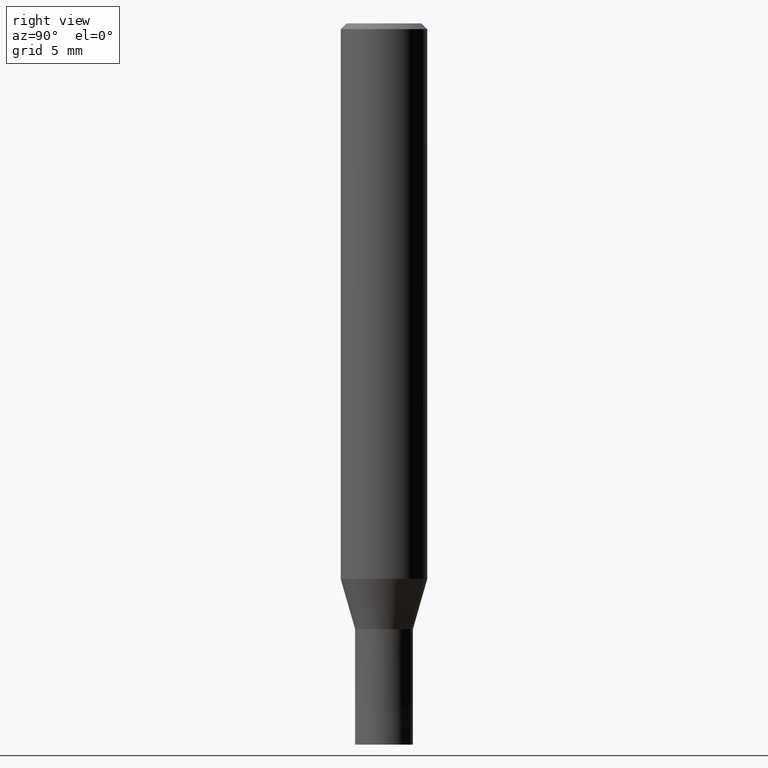
[diagram: clean part render]
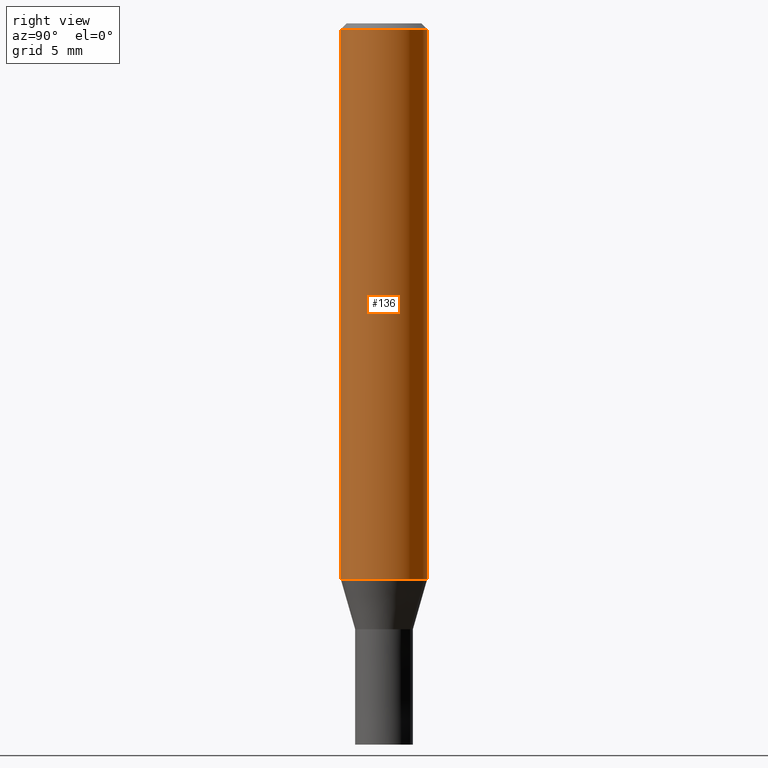
[diagram: same view with one face highlighted and labeled with its STEP entity id]
A machine part, right view. The second image highlights one B-rep face of the part: STEP entity #136.
In plain terms, the highlighted cylindrical surface (partial cylindrical patch) has radius 3 mm, axis along (-0, -0, 1).
Its self-contained STEP definition (entity closure, byte-faithful):
#90=VERTEX_POINT('',#212);
#106=VERTEX_POINT('',#229);
#126=VERTEX_POINT('',#254);
#132=EDGE_CURVE('',#162,#106,#260,.T.);
#136=ADVANCED_FACE('',(#264),#265,.T.);
#150=EDGE_CURVE('',#126,#90,#280,.T.);
#152=EDGE_CURVE('',#126,#106,#282,.T.);
#162=VERTEX_POINT('',#294);
#164=EDGE_CURVE('',#90,#162,#296,.T.);
#212=CARTESIAN_POINT('',(0.0,3.0,-38.513));
#229=CARTESIAN_POINT('',(3.67381906146713E-016,-3.0,-0.399999999999999));
#254=CARTESIAN_POINT('',(0.0,3.0,-0.399999999999999));
#260=LINE('',#397,#398);
#264=FACE_OUTER_BOUND('',#404,.T.);
#265=CYLINDRICAL_SURFACE('',#405,3.0);
#280=LINE('',#426,#427);
#282=CIRCLE('',#430,3.0);
#294=CARTESIAN_POINT('',(3.67381906146713E-016,-3.0,-38.513));
#296=CIRCLE('',#446,3.0);
#397=CARTESIAN_POINT('',(3.67381906146713E-016,-3.0,-19.4565));
#398=VECTOR('',#547,1.0);
#404=EDGE_LOOP('',(#550,#551,#552,#553));
#405=AXIS2_PLACEMENT_3D('',#554,#555,#556);
#426=CARTESIAN_POINT('',(-3.67381906146713E-016,3.0,-19.4565));
#427=VECTOR('',#570,1.0);
#430=AXIS2_PLACEMENT_3D('',#571,#572,#573);
#446=AXIS2_PLACEMENT_3D('',#589,#590,#591);
#547=DIRECTION('',(-0.0,-0.0,1.0));
#550=ORIENTED_EDGE('',*,*,#150,.F.);
#551=ORIENTED_EDGE('',*,*,#152,.T.);
#552=ORIENTED_EDGE('',*,*,#132,.F.);
#553=ORIENTED_EDGE('',*,*,#164,.F.);
#554=CARTESIAN_POINT('',(0.0,0.0,-19.4565));
#555=DIRECTION('',(-0.0,-0.0,1.0));
#556=DIRECTION('',(0.0,1.0,0.0));
#570=DIRECTION('',(0.0,0.0,-1.0));
#571=CARTESIAN_POINT('',(0.0,0.0,-0.399999999999999));
#572=DIRECTION('',(0.0,0.0,-1.0));
#573=DIRECTION('',(0.0,1.0,0.0));
#589=CARTESIAN_POINT('',(0.0,0.0,-38.513));
#590=DIRECTION('',(0.0,0.0,-1.0));
#591=DIRECTION('',(0.0,1.0,0.0));